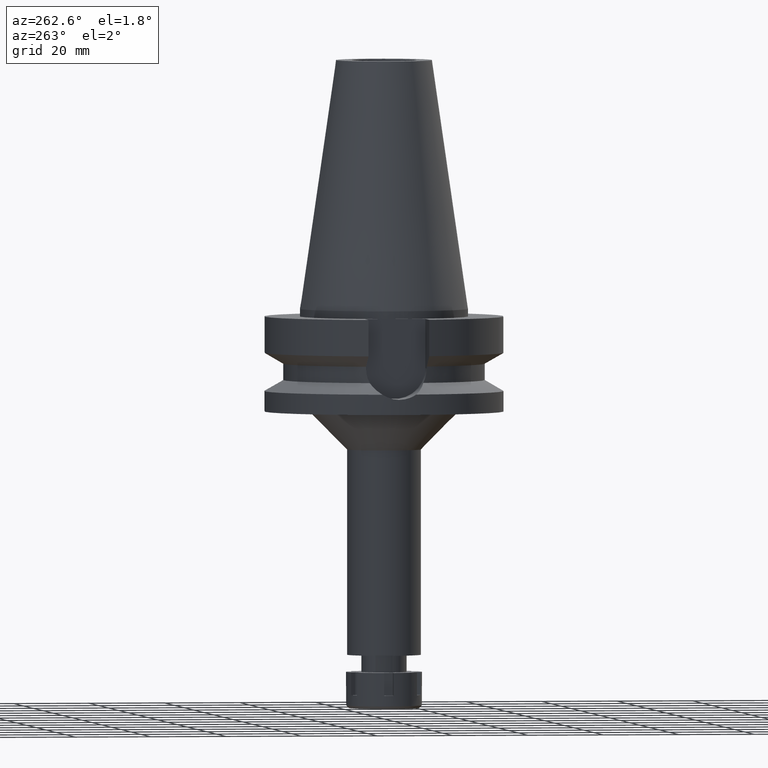
[diagram: clean part render]
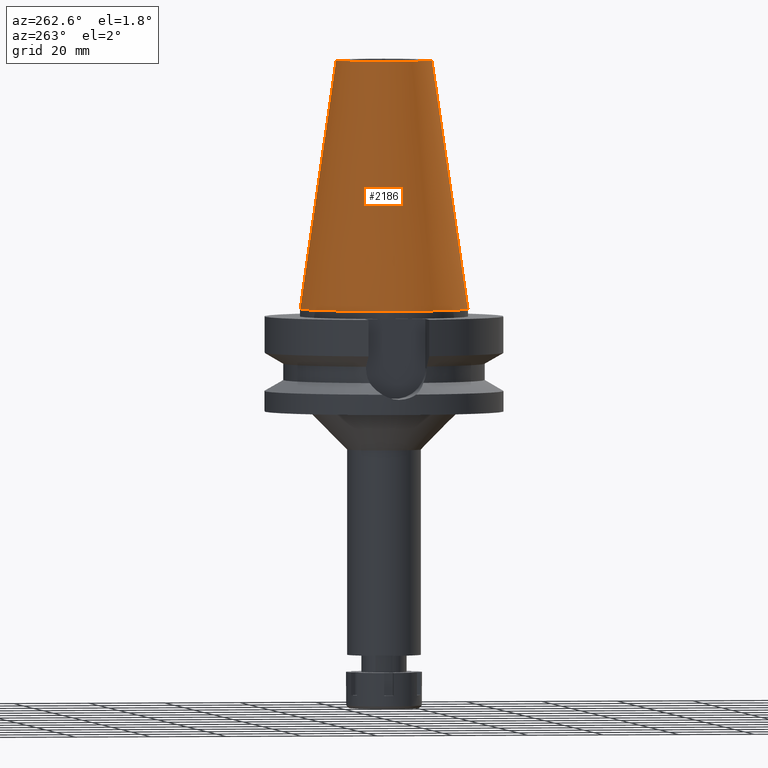
[diagram: same view with one face highlighted and labeled with its STEP entity id]
A machine part, auxiliary view. The second image highlights one B-rep face of the part: STEP entity #2186.
In plain terms, the highlighted conical surface has half-angle 8.297 deg.
Its self-contained STEP definition (entity closure, byte-faithful):
#5 = CARTESIAN_POINT ( 'NONE',  ( 0.0000000000000000000, 1.625106302469000024E-14, 32.70000000000000284 ) ) ;
#43 = CARTESIAN_POINT ( 'NONE',  ( 0.0000000000000000000, 22.22500000000000142, 7.105427357600999334E-14 ) ) ;
#178 = VECTOR ( 'NONE', #466, 1000.000000000000114 ) ;
#384 = EDGE_CURVE ( 'NONE', #2326, #1144, #3212, .T. ) ;
#399 = EDGE_CURVE ( 'NONE', #2425, #1526, #1864, .T. ) ;
#402 = ORIENTED_EDGE ( 'NONE', *, *, #399, .F. ) ;
#466 = DIRECTION ( 'NONE',  ( 0.0000000000000000000, -0.1443043893539925626, -0.9895333461855498891 ) ) ;
#705 = AXIS2_PLACEMENT_3D ( 'NONE', #1453, #2864, #3139 ) ;
#944 = ORIENTED_EDGE ( 'NONE', *, *, #3011, .F. ) ;
#1074 = DIRECTION ( 'NONE',  ( 0.0000000000000000000, -1.000000000000000000, 0.0000000000000000000 ) ) ;
#1134 = DIRECTION ( 'NONE',  ( 0.0000000000000000000, 0.0000000000000000000, -1.000000000000000000 ) ) ;
#1144 = VERTEX_POINT ( 'NONE', #43 ) ;
#1157 = FACE_OUTER_BOUND ( 'NONE', #2106, .T. ) ;
#1321 = CARTESIAN_POINT ( 'NONE',  ( 0.0000000000000000000, 12.68766899429999917, 65.40000000000000568 ) ) ;
#1358 = AXIS2_PLACEMENT_3D ( 'NONE', #3638, #1134, #1074 ) ;
#1453 = CARTESIAN_POINT ( 'NONE',  ( 0.0000000000000000000, 1.625106302469000024E-14, 2.842170943039999687E-14 ) ) ;
#1526 = VERTEX_POINT ( 'NONE', #1793 ) ;
#1528 = AXIS2_PLACEMENT_3D ( 'NONE', #5, #2773, #2500 ) ;
#1538 = CIRCLE ( 'NONE', #705, 22.22500000000000142 ) ;
#1614 = CARTESIAN_POINT ( 'NONE',  ( 0.0000000000000000000, -12.68766899429999917, 65.40000000000000568 ) ) ;
#1727 = CARTESIAN_POINT ( 'NONE',  ( 0.0000000000000000000, 12.68766899429999917, 65.40000000000000568 ) ) ;
#1793 = CARTESIAN_POINT ( 'NONE',  ( 0.0000000000000000000, -22.22500000000000142, 2.842170943039999687E-14 ) ) ;
#1796 = ORIENTED_EDGE ( 'NONE', *, *, #384, .T. ) ;
#1864 = LINE ( 'NONE', #2362, #178 ) ;
#2106 = EDGE_LOOP ( 'NONE', ( #944, #402, #2662, #1796 ) ) ;
#2186 = ADVANCED_FACE ( 'NONE', ( #1157 ), #2700, .T. ) ;
#2326 = VERTEX_POINT ( 'NONE', #1727 ) ;
#2362 = CARTESIAN_POINT ( 'NONE',  ( 0.0000000000000000000, -12.68766899429999917, 65.40000000000000568 ) ) ;
#2425 = VERTEX_POINT ( 'NONE', #1614 ) ;
#2438 = DIRECTION ( 'NONE',  ( 0.0000000000000000000, 0.1443043893539925626, -0.9895333461855498891 ) ) ;
#2500 = DIRECTION ( 'NONE',  ( 0.0000000000000000000, -1.000000000000000000, 0.0000000000000000000 ) ) ;
#2655 = EDGE_CURVE ( 'NONE', #2425, #2326, #3587, .T. ) ;
#2662 = ORIENTED_EDGE ( 'NONE', *, *, #2655, .T. ) ;
#2700 = CONICAL_SURFACE ( 'NONE', #1528, 17.45633449714999941, 0.1448099680379422438 ) ;
#2752 = VECTOR ( 'NONE', #2438, 1000.000000000000114 ) ;
#2773 = DIRECTION ( 'NONE',  ( 0.0000000000000000000, 0.0000000000000000000, -1.000000000000000000 ) ) ;
#2864 = DIRECTION ( 'NONE',  ( 0.0000000000000000000, 0.0000000000000000000, -1.000000000000000000 ) ) ;
#3011 = EDGE_CURVE ( 'NONE', #1526, #1144, #1538, .T. ) ;
#3139 = DIRECTION ( 'NONE',  ( 0.0000000000000000000, -1.000000000000000000, 0.0000000000000000000 ) ) ;
#3212 = LINE ( 'NONE', #1321, #2752 ) ;
#3587 = CIRCLE ( 'NONE', #1358, 12.68766899429999917 ) ;
#3638 = CARTESIAN_POINT ( 'NONE',  ( 0.0000000000000000000, 1.625106302469000024E-14, 65.40000000000000568 ) ) ;